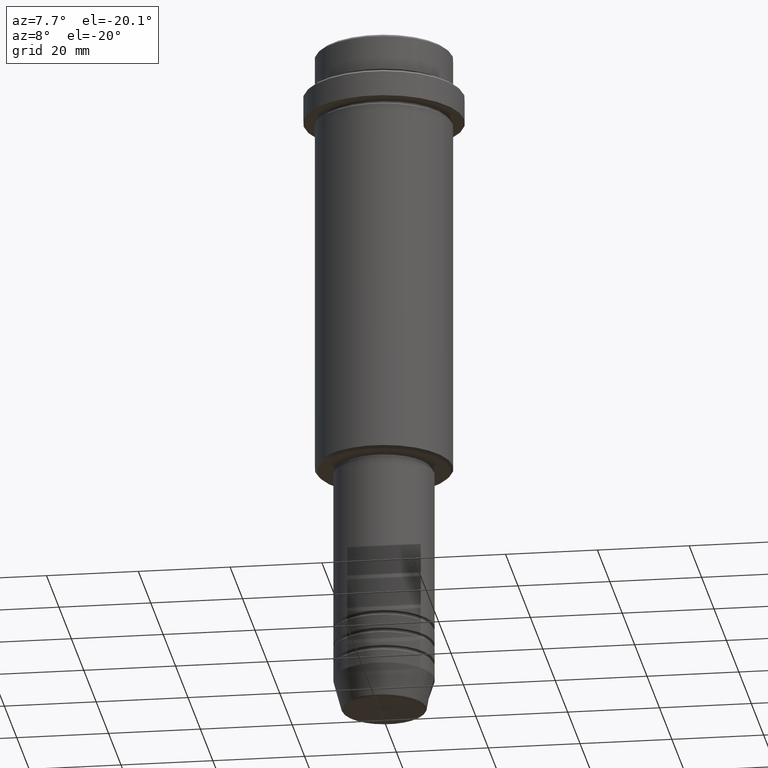
[diagram: clean part render]
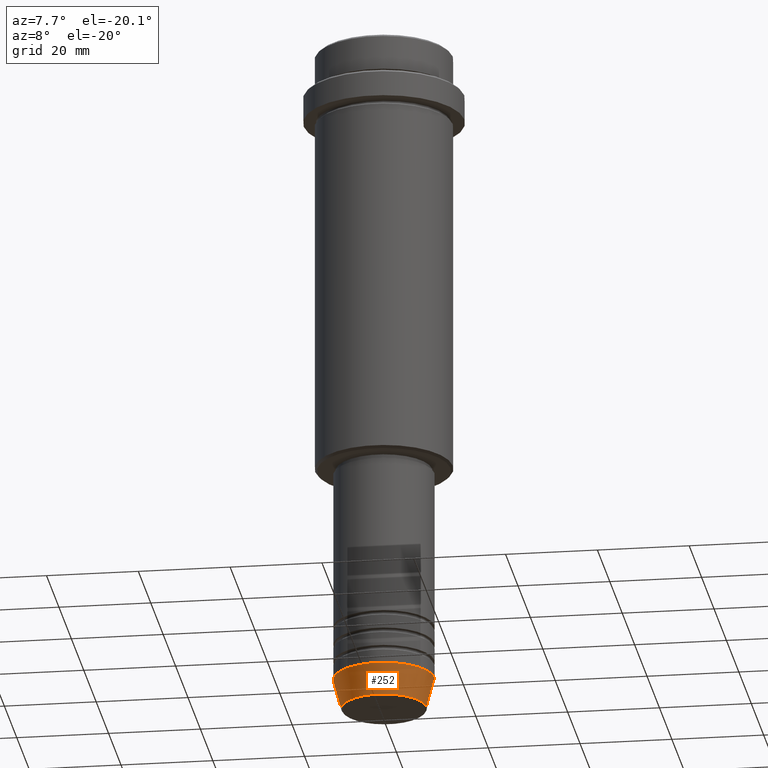
[diagram: same view with one face highlighted and labeled with its STEP entity id]
A machine part, auxiliary view. The second image highlights one B-rep face of the part: STEP entity #252.
In plain terms, the highlighted conical surface has half-angle 15 deg.
Its self-contained STEP definition (entity closure, byte-faithful):
#40 = VERTEX_POINT ( 'NONE', #906 ) ;
#93 = CIRCLE ( 'NONE', #570, 9.223655072137189492 ) ;
#101 = ORIENTED_EDGE ( 'NONE', *, *, #680, .F. ) ;
#108 = DIRECTION ( 'NONE',  ( 1.000000000000000000, 0.000000000000000000, 0.000000000000000000 ) ) ;
#252 = ADVANCED_FACE ( 'NONE', ( #1290 ), #535, .T. ) ;
#331 = CIRCLE ( 'NONE', #836, 11.00000000000000000 ) ;
#454 = CARTESIAN_POINT ( 'NONE',  ( -11.00000000000000000, 1.347111479062088405E-15, -143.0000000000000000 ) ) ;
#535 = CONICAL_SURFACE ( 'NONE', #1078, 11.00000000000000000, 0.2617993877991500740 ) ;
#544 = LINE ( 'NONE', #955, #660 ) ;
#570 = AXIS2_PLACEMENT_3D ( 'NONE', #934, #1270, #925 ) ;
#575 = EDGE_LOOP ( 'NONE', ( #1095, #1303, #991, #101 ) ) ;
#660 = VECTOR ( 'NONE', #1389, 1000.000000000000000 ) ;
#680 = EDGE_CURVE ( 'NONE', #1096, #40, #331, .T. ) ;
#702 = LINE ( 'NONE', #454, #1399 ) ;
#772 = DIRECTION ( 'NONE',  ( -0.000000000000000000, -0.000000000000000000, 1.000000000000000000 ) ) ;
#832 = CARTESIAN_POINT ( 'NONE',  ( -11.00000000000000000, 1.347111479062088405E-15, -143.0000000000000000 ) ) ;
#836 = AXIS2_PLACEMENT_3D ( 'NONE', #984, #1294, #879 ) ;
#879 = DIRECTION ( 'NONE',  ( 1.000000000000000000, 0.000000000000000000, 0.000000000000000000 ) ) ;
#892 = DIRECTION ( 'NONE',  ( -0.2588190451025213501, 3.169619151431772337E-17, 0.9659258262890680902 ) ) ;
#906 = CARTESIAN_POINT ( 'NONE',  ( 11.00000000000000000, 0.000000000000000000, -143.0000000000000000 ) ) ;
#916 = VERTEX_POINT ( 'NONE', #1009 ) ;
#925 = DIRECTION ( 'NONE',  ( 1.000000000000000000, 0.000000000000000000, 0.000000000000000000 ) ) ;
#934 = CARTESIAN_POINT ( 'NONE',  ( 0.000000000000000000, 0.000000000000000000, -149.6294095225512422 ) ) ;
#938 = CARTESIAN_POINT ( 'NONE',  ( -9.223655072137189492, 1.238341722557647202E-15, -149.6294095225512422 ) ) ;
#955 = CARTESIAN_POINT ( 'NONE',  ( 11.00000000000000000, 0.000000000000000000, -143.0000000000000000 ) ) ;
#964 = EDGE_CURVE ( 'NONE', #999, #1096, #702, .T. ) ;
#984 = CARTESIAN_POINT ( 'NONE',  ( 0.000000000000000000, 0.000000000000000000, -143.0000000000000000 ) ) ;
#991 = ORIENTED_EDGE ( 'NONE', *, *, #1194, .T. ) ;
#999 = VERTEX_POINT ( 'NONE', #938 ) ;
#1009 = CARTESIAN_POINT ( 'NONE',  ( 9.223655072137189492, 0.000000000000000000, -149.6294095225512422 ) ) ;
#1052 = EDGE_CURVE ( 'NONE', #999, #916, #93, .T. ) ;
#1072 = CARTESIAN_POINT ( 'NONE',  ( 0.000000000000000000, 0.000000000000000000, -143.0000000000000000 ) ) ;
#1078 = AXIS2_PLACEMENT_3D ( 'NONE', #1072, #772, #108 ) ;
#1095 = ORIENTED_EDGE ( 'NONE', *, *, #964, .F. ) ;
#1096 = VERTEX_POINT ( 'NONE', #832 ) ;
#1194 = EDGE_CURVE ( 'NONE', #916, #40, #544, .T. ) ;
#1270 = DIRECTION ( 'NONE',  ( -0.000000000000000000, -0.000000000000000000, 1.000000000000000000 ) ) ;
#1290 = FACE_OUTER_BOUND ( 'NONE', #575, .T. ) ;
#1294 = DIRECTION ( 'NONE',  ( -0.000000000000000000, -0.000000000000000000, 1.000000000000000000 ) ) ;
#1303 = ORIENTED_EDGE ( 'NONE', *, *, #1052, .T. ) ;
#1389 = DIRECTION ( 'NONE',  ( 0.2588190451025213501, 0.000000000000000000, 0.9659258262890680902 ) ) ;
#1399 = VECTOR ( 'NONE', #892, 1000.000000000000000 ) ;